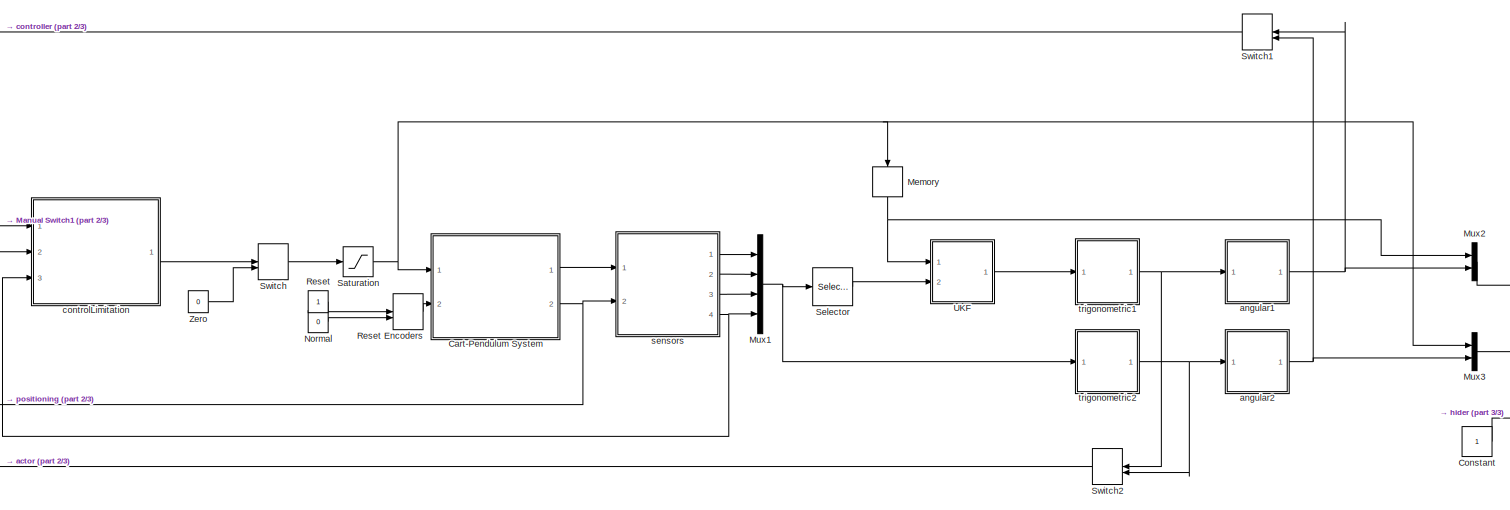
[diagram: root canvas - part 1/3, center side, full height]
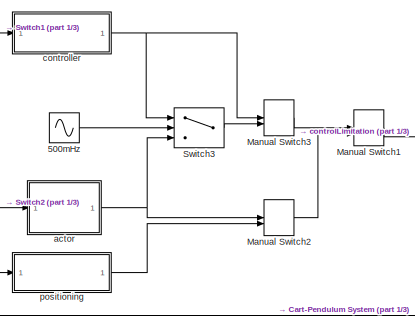
[diagram: root canvas - part 2/3, middle left region]
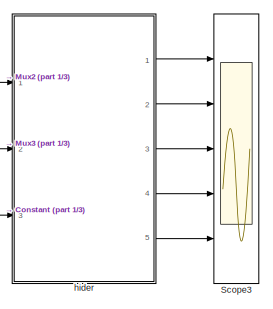
[diagram: root canvas - part 3/3, bottom right region]
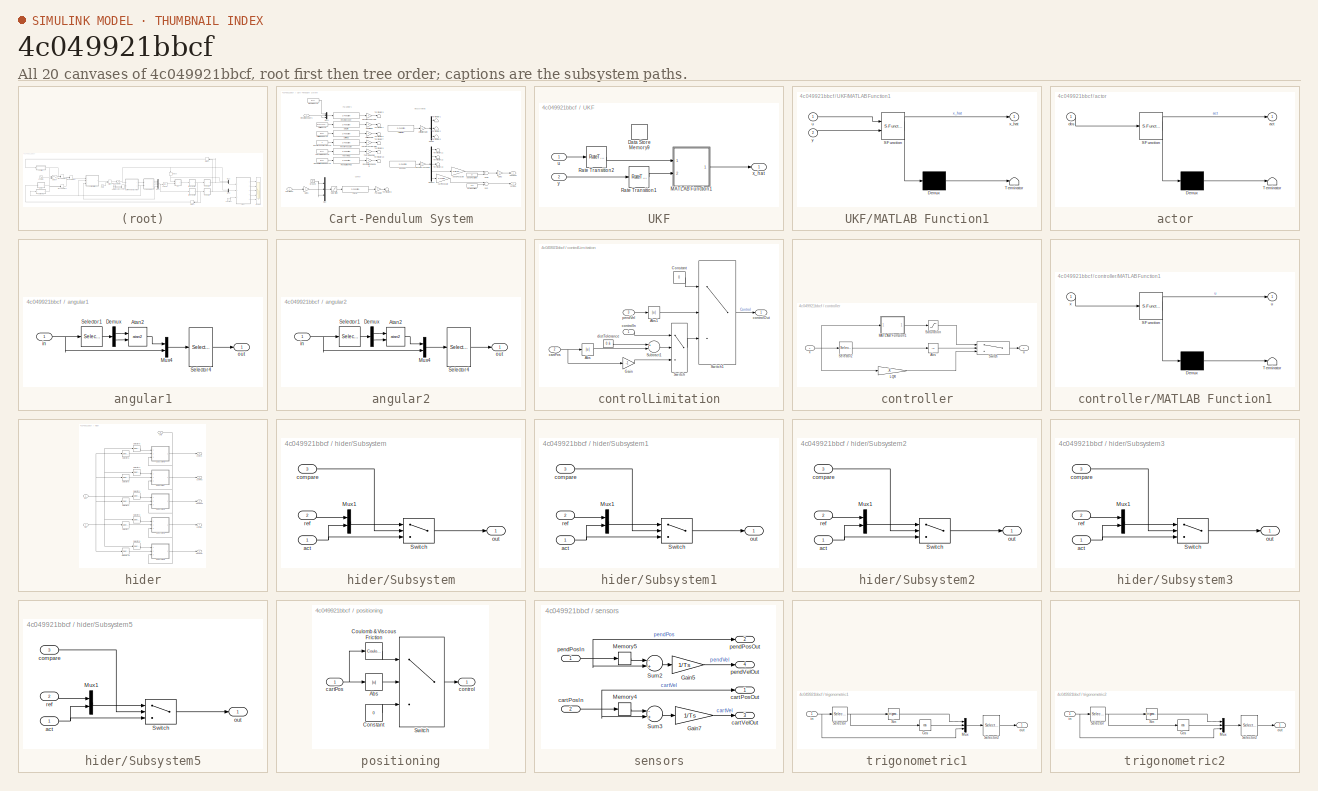
[diagram: thumbnail index - all 20 canvases of the model, root first then tree order]
MODEL slx_4c049921bbcf
KIND model
CONFIG AbsTol = 1e-6
CONFIG FixedStep = 0.01
CONFIG MaxStep = auto
CONFIG MinStep = auto
CONFIG RelTol = 1e-3
CONFIG SampleTimeConstraint = Unconstrained
CONFIG Solver = ode5
CONFIG SolverMode = SingleTasking
CONFIG SolverName = ode5
CONFIG StartTime = 0.0
CONFIG StopTime = 9999
BLOCK [Sin] 500mHz
  Frequency = pi
  Ports = [0, 1]
  SampleTime = Ts
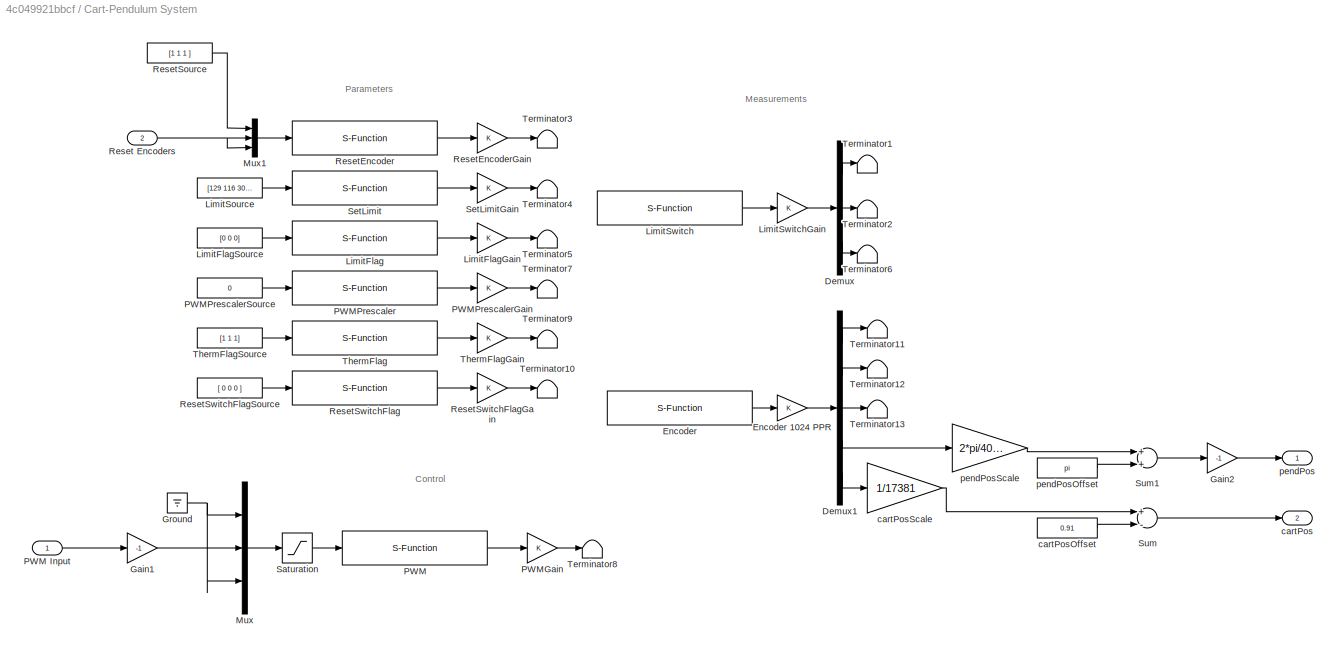
BLOCK [SubSystem] Cart-Pendulum System
  Ports = [2, 2]
  RequestExecContextInheritance = off
BLOCK [Demux] Cart-Pendulum System/Demux
  Outputs = 3
  Ports = [1, 3]
BLOCK [Demux] Cart-Pendulum System/Demux1
  Outputs = 5
  Ports = [1, 5]
BLOCK [S-Function] Cart-Pendulum System/Encoder
  FunctionName = P1_Encoder
  Parameters = BaseAddress, T0
  Ports = [0, 1]
BLOCK [Gain] Cart-Pendulum System/Encoder 1024 PPR
BLOCK [Gain] Cart-Pendulum System/Gain1
  Gain = -1
  OutDataTypeStr = Inherit: Inherit via internal rule
  ParamDataTypeStr = Inherit: Inherit via internal rule
  SaturateOnIntegerOverflow = off
BLOCK [Gain] Cart-Pendulum System/Gain2
  Gain = -1
  OutDataTypeStr = Inherit: Inherit via internal rule
  ParamDataTypeStr = Inherit: Inherit via internal rule
  SaturateOnIntegerOverflow = off
BLOCK [Ground] Cart-Pendulum System/Ground
BLOCK [S-Function] Cart-Pendulum System/LimitFlag
  FunctionName = P1_LimitFlag
  Parameters = BaseAddress, T0
  Ports = [1, 1]
BLOCK [Gain] Cart-Pendulum System/LimitFlagGain
BLOCK [Constant] Cart-Pendulum System/LimitFlagSource
  Value = [0 0 0]
BLOCK [Constant] Cart-Pendulum System/LimitSource
  Value = [129 116 300]
BLOCK [S-Function] Cart-Pendulum System/LimitSwitch
  FunctionName = P1_Switch
  Parameters = BaseAddress, T0
  Ports = [0, 1]
BLOCK [Gain] Cart-Pendulum System/LimitSwitchGain
BLOCK [Mux] Cart-Pendulum System/Mux
  Inputs = 3
  Ports = [3, 1]
BLOCK [Mux] Cart-Pendulum System/Mux1
  DisplayOption = bar
  Inputs = [3 1 1]
  Ports = [3, 1]
BLOCK [S-Function] Cart-Pendulum System/PWM
  FunctionName = P1_PWM
  Parameters = BaseAddress, T0
  Ports = [1, 1]
BLOCK [Inport] Cart-Pendulum System/PWM Input
  IconDisplay = Port number
BLOCK [Gain] Cart-Pendulum System/PWMGain
BLOCK [S-Function] Cart-Pendulum System/PWMPrescaler
  FunctionName = P1_PWMPrescaler
  Parameters = BaseAddress, T0
  Ports = [1, 1]
BLOCK [Gain] Cart-Pendulum System/PWMPrescalerGain
BLOCK [Constant] Cart-Pendulum System/PWMPrescalerSource
  Value = 0
BLOCK [Inport] Cart-Pendulum System/Reset Encoders
  IconDisplay = Port number
  Port = 2
BLOCK [S-Function] Cart-Pendulum System/ResetEncoder
  FunctionName = P1_ResetEncoder
  Parameters = BaseAddress, T0
  Ports = [1, 1]
BLOCK [Gain] Cart-Pendulum System/ResetEncoderGain
BLOCK [Constant] Cart-Pendulum System/ResetSource
  Value = [1 1 1 ]
BLOCK [S-Function] Cart-Pendulum System/ResetSwitchFlag 
  FunctionName = P1_ResetSwitchFlag
  Parameters = BaseAddress, T0
  Ports = [1, 1]
BLOCK [Gain] Cart-Pendulum System/ResetSwitchFlagGain
BLOCK [Constant] Cart-Pendulum System/ResetSwitchFlagSource
  Value = [ 0 0 0 ]
BLOCK [Saturate] Cart-Pendulum System/Saturation
  InputPortMap = u0
  Ports = [1, 1]
BLOCK [S-Function] Cart-Pendulum System/SetLimit
  FunctionName = P1_SetLimit
  Parameters = BaseAddress, T0
  Ports = [1, 1]
BLOCK [Gain] Cart-Pendulum System/SetLimitGain
BLOCK [Sum] Cart-Pendulum System/Sum
  Inputs = +-
  Ports = [2, 1]
BLOCK [Sum] Cart-Pendulum System/Sum1
  Ports = [2, 1]
BLOCK [Terminator] Cart-Pendulum System/Terminator1
BLOCK [Terminator] Cart-Pendulum System/Terminator10
BLOCK [Terminator] Cart-Pendulum System/Terminator11
BLOCK [Terminator] Cart-Pendulum System/Terminator12
BLOCK [Terminator] Cart-Pendulum System/Terminator13
BLOCK [Terminator] Cart-Pendulum System/Terminator2
BLOCK [Terminator] Cart-Pendulum System/Terminator3
BLOCK [Terminator] Cart-Pendulum System/Terminator4
BLOCK [Terminator] Cart-Pendulum System/Terminator5
BLOCK [Terminator] Cart-Pendulum System/Terminator6
BLOCK [Terminator] Cart-Pendulum System/Terminator7
BLOCK [Terminator] Cart-Pendulum System/Terminator8
BLOCK [Terminator] Cart-Pendulum System/Terminator9
BLOCK [S-Function] Cart-Pendulum System/ThermFlag 
  FunctionName = P1_ThermFlag
  Parameters = BaseAddress, T0
  Ports = [1, 1]
BLOCK [Gain] Cart-Pendulum System/ThermFlagGain
BLOCK [Constant] Cart-Pendulum System/ThermFlagSource
  Value = [1 1 1]
BLOCK [Outport] Cart-Pendulum System/cartPos
  IconDisplay = Port number
  Port = 2
BLOCK [Constant] Cart-Pendulum System/cartPosOffset
  Value = 0.91
BLOCK [Gain] Cart-Pendulum System/cartPosScale
  Gain = 1/17381
  SaturateOnIntegerOverflow = off
BLOCK [Outport] Cart-Pendulum System/pendPos
  IconDisplay = Port number
BLOCK [Constant] Cart-Pendulum System/pendPosOffset
  Value = pi
BLOCK [Gain] Cart-Pendulum System/pendPosScale
  Gain = 2*pi/4096
  SaturateOnIntegerOverflow = off
BLOCK [Constant] Constant
BLOCK [ManualSwitch] Manual Switch1
  CurrentSetting = 0
BLOCK [ManualSwitch] Manual Switch2
  CurrentSetting = 0
BLOCK [ManualSwitch] Manual Switch3
BLOCK [Memory] Memory
BLOCK [Mux] Mux1
  DisplayOption = bar
  Ports = [4, 1]
BLOCK [Mux] Mux2
  DisplayOption = bar
  Inputs = 2
  Ports = [2, 1]
BLOCK [Mux] Mux3
  DisplayOption = bar
  Inputs = 2
  Ports = [2, 1]
BLOCK [Constant] Normal
  Value = 0
BLOCK [Constant] Reset
BLOCK [ManualSwitch] Reset Encoders
  CurrentSetting = 0
BLOCK [Saturate] Saturation
  InputPortMap = u0
  Ports = [1, 1]
BLOCK [Scope] Scope3
  DataFormat = StructureWithTime
  Floating = off
  LimitDataPoints = off
  NumInputPorts = 5
  Ports = [5]
  SampleInput = on
  SampleTime = Ts
  SaveToWorkspace = on
  TimeRange = 15
  YMax = 0.6~1~3.141592653589793~5~12
  YMin = -0.6~-1~-3.141592653589793~-5~-12
BLOCK [Selector] Selector
  Indices = [1 2]
  InputPortWidth = 4
  Ports = [1, 1]
BLOCK [ManualSwitch] Switch
  CurrentSetting = 0
BLOCK [ManualSwitch] Switch1
BLOCK [ManualSwitch] Switch2
BLOCK [Switch] Switch3
  Criteria = u2 > Threshold
  InputSameDT = off
  SaturateOnIntegerOverflow = off
BLOCK [SubSystem] UKF
  Ports = [2, 1]
  RequestExecContextInheritance = off
BLOCK [DataStoreMemory] UKF/Data Store Memory9
  DataStoreName = control
  OutDataTypeStr = double
  ReadBeforeWriteMsg = warning
  SignalType = real
  WriteAfterReadMsg = warning
  WriteAfterWriteMsg = warning
BLOCK [SubSystem] UKF/MATLAB Function1
  ErrorFcn = Stateflow.Translate.translate
  PermitHierarchicalResolution = ExplicitOnly
  Ports = [2, 1]
  RequestExecContextInheritance = off
  SFBlockType = MATLAB Function
  TreatAsAtomicUnit = on
BLOCK [Demux] UKF/MATLAB Function1/ Demux 
  DisplayOption = bar
  Outputs = 1
  Ports = [1, 1]
BLOCK [S-Function] UKF/MATLAB Function1/ SFunction 
  EnableBusSupport = on
  FunctionName = sf_sfun
  PortCounts = [2 2]
  Ports = [2, 2]
  Tag = Stateflow S-Function CartPendReal 9
BLOCK [Terminator] UKF/MATLAB Function1/ Terminator 
BLOCK [Inport] UKF/MATLAB Function1/u
  IconDisplay = Port number
BLOCK [Outport] UKF/MATLAB Function1/x_hat
  IconDisplay = Port number
BLOCK [Inport] UKF/MATLAB Function1/y
  IconDisplay = Port number
  Port = 2
BLOCK [RateTransition] UKF/Rate Transition1
  OutPortSampleTime = Ts
  X0 = x0(1:2)
BLOCK [RateTransition] UKF/Rate Transition2
  OutPortSampleTime = Ts
BLOCK [Inport] UKF/u
  IconDisplay = Port number
BLOCK [Outport] UKF/x_hat
  IconDisplay = Port number
BLOCK [Inport] UKF/y
  IconDisplay = Port number
  Port = 2
BLOCK [Constant] Zero
  Value = 0
BLOCK [SubSystem] actor
  ErrorFcn = Stateflow.Translate.translate
  PermitHierarchicalResolution = ExplicitOnly
  Ports = [1, 1]
  RequestExecContextInheritance = off
  SFBlockType = MATLAB Function
  SystemSampleTime = Ts
  TreatAsAtomicUnit = on
BLOCK [Demux] actor/ Demux 
  DisplayOption = bar
  Outputs = 1
  Ports = [1, 1]
BLOCK [S-Function] actor/ SFunction 
  EnableBusSupport = on
  FunctionName = sf_sfun
  Parameters = B1,B2,W1,W2
  PortCounts = [1 2]
  Ports = [1, 2]
  Tag = Stateflow S-Function CartPendReal 6
BLOCK [Terminator] actor/ Terminator 
BLOCK [Outport] actor/act
  IconDisplay = Port number
BLOCK [Inport] actor/obs
  IconDisplay = Port number
BLOCK [SubSystem] angular1
  Ports = [1, 1]
  RequestExecContextInheritance = off
BLOCK [Trigonometry] angular1/Atan2
  Operator = atan2
  Ports = [2, 1]
BLOCK [Demux] angular1/Demux
  DisplayOption = bar
  Outputs = 2
  Ports = [1, 2]
BLOCK [Mux] angular1/Mux4
  DisplayOption = bar
  Inputs = 2
  Ports = [2, 1]
BLOCK [Selector] angular1/Selector1
  Indices = [2 3]
  InputPortWidth = 5
  Ports = [1, 1]
BLOCK [Selector] angular1/Selector4
  Indices = [2 1 5 6]
  InputPortWidth = 6
  Ports = [1, 1]
BLOCK [Inport] angular1/in
  IconDisplay = Port number
BLOCK [Outport] angular1/out
  IconDisplay = Port number
BLOCK [SubSystem] angular2
  Ports = [1, 1]
  RequestExecContextInheritance = off
BLOCK [Trigonometry] angular2/Atan2
  Operator = atan2
  Ports = [2, 1]
BLOCK [Demux] angular2/Demux
  DisplayOption = bar
  Outputs = 2
  Ports = [1, 2]
BLOCK [Mux] angular2/Mux4
  DisplayOption = bar
  Inputs = 2
  Ports = [2, 1]
BLOCK [Selector] angular2/Selector1
  Indices = [2 3]
  InputPortWidth = 5
  Ports = [1, 1]
BLOCK [Selector] angular2/Selector4
  Indices = [2 1 5 6]
  InputPortWidth = 6
  Ports = [1, 1]
BLOCK [Inport] angular2/in
  IconDisplay = Port number
BLOCK [Outport] angular2/out
  IconDisplay = Port number
BLOCK [SubSystem] controlLimitation
  Ports = [3, 1]
  RequestExecContextInheritance = off
BLOCK [Abs] controlLimitation/Abs
  SaturateOnIntegerOverflow = off
BLOCK [Abs] controlLimitation/Abs1
  SaturateOnIntegerOverflow = off
BLOCK [Constant] controlLimitation/Constant
  Value = 0
BLOCK [Gain] controlLimitation/Gain
  Gain = -1
  OutDataTypeStr = Inherit: Inherit via internal rule
  ParamDataTypeStr = Inherit: Inherit via internal rule
  SaturateOnIntegerOverflow = off
BLOCK [Sum] controlLimitation/Subtract1
  InputSameDT = off
  Inputs = +-
  OutDataTypeStr = Inherit: Inherit via internal rule
  Ports = [2, 1]
  SaturateOnIntegerOverflow = off
BLOCK [Switch] controlLimitation/Switch
  Criteria = u2 > Threshold
  InputSameDT = off
  SaturateOnIntegerOverflow = off
BLOCK [Switch] controlLimitation/Switch1
  Criteria = u2 > Threshold
  InputSameDT = off
  SaturateOnIntegerOverflow = off
  Threshold = 1e5
BLOCK [Inport] controlLimitation/cartPos
  IconDisplay = Port number
  Port = 2
BLOCK [Inport] controlLimitation/controlIn
  IconDisplay = Port number
BLOCK [Outport] controlLimitation/controlOut
  IconDisplay = Port number
BLOCK [Constant] controlLimitation/distTolerance
  Value = 0.6
BLOCK [Inport] controlLimitation/pendVel
  IconDisplay = Port number
  Port = 3
BLOCK [SubSystem] controller
  Ports = [1, 1]
  RequestExecContextInheritance = off
BLOCK [Abs] controller/Abs
  SaturateOnIntegerOverflow = off
BLOCK [Gain] controller/LQR
  Gain = -K
  Multiplication = Matrix(K*u) (u vector)
  OutDataTypeStr = Inherit: Inherit via internal rule
  ParamDataTypeStr = Inherit: Inherit via internal rule
  SaturateOnIntegerOverflow = off
BLOCK [SubSystem] controller/MATLAB Function1
  ErrorFcn = Stateflow.Translate.translate
  PermitHierarchicalResolution = ExplicitOnly
  Ports = [1, 1]
  RequestExecContextInheritance = off
  SFBlockType = MATLAB Function
  SystemSampleTime = Ts
  TreatAsAtomicUnit = on
BLOCK [Demux] controller/MATLAB Function1/ Demux 
  DisplayOption = bar
  Outputs = 1
  Ports = [1, 1]
BLOCK [S-Function] controller/MATLAB Function1/ SFunction 
  EnableBusSupport = on
  FunctionName = sf_sfun
  Parameters = Jp,g,lpo,lpwo,mps,mpw
  PortCounts = [1 2]
  Ports = [1, 2]
  Tag = Stateflow S-Function CartPendReal 5
BLOCK [Terminator] controller/MATLAB Function1/ Terminator 
BLOCK [Outport] controller/MATLAB Function1/u
  IconDisplay = Port number
BLOCK [Inport] controller/MATLAB Function1/x
  IconDisplay = Port number
BLOCK [Saturate] controller/Saturation
  InputPortMap = u0
  LowerLimit = -0.4
  Ports = [1, 1]
  UpperLimit = 0.4
BLOCK [Selector] controller/Selector2
  Indices = [2]
  InputPortWidth = 4
  Ports = [1, 1]
BLOCK [Switch] controller/Switch
  Criteria = u2 > Threshold
  InputSameDT = off
  SaturateOnIntegerOverflow = off
  Threshold = 0.5
BLOCK [Outport] controller/u
  IconDisplay = Port number
BLOCK [Inport] controller/x
  IconDisplay = Port number
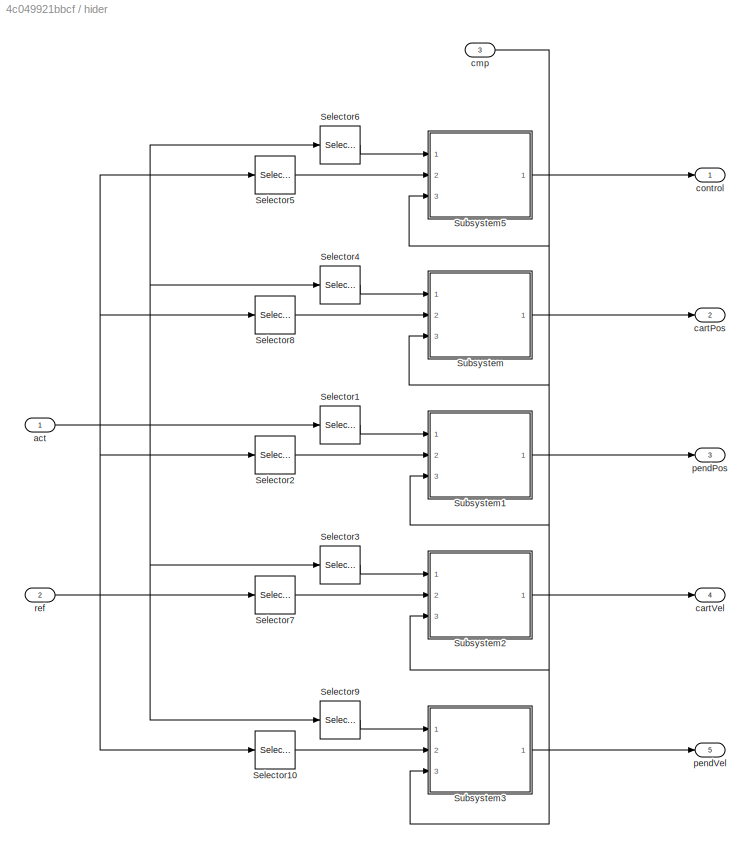
BLOCK [SubSystem] hider
  Ports = [3, 5]
  RequestExecContextInheritance = off
BLOCK [Selector] hider/Selector1
  Indices = [3]
  InputPortWidth = 5
  Ports = [1, 1]
BLOCK [Selector] hider/Selector10
  Indices = [5]
  InputPortWidth = 5
  Ports = [1, 1]
BLOCK [Selector] hider/Selector2
  Indices = [3]
  InputPortWidth = 5
  Ports = [1, 1]
BLOCK [Selector] hider/Selector3
  Indices = [4]
  InputPortWidth = 5
  Ports = [1, 1]
BLOCK [Selector] hider/Selector4
  Indices = [2]
  InputPortWidth = 5
  Ports = [1, 1]
BLOCK [Selector] hider/Selector5
  Indices = [1]
  InputPortWidth = 5
  Ports = [1, 1]
BLOCK [Selector] hider/Selector6
  Indices = [1]
  InputPortWidth = 5
  Ports = [1, 1]
BLOCK [Selector] hider/Selector7
  Indices = [4]
  InputPortWidth = 5
  Ports = [1, 1]
BLOCK [Selector] hider/Selector8
  Indices = [2]
  InputPortWidth = 5
  Ports = [1, 1]
BLOCK [Selector] hider/Selector9
  Indices = [5]
  InputPortWidth = 5
  Ports = [1, 1]
BLOCK [SubSystem] hider/Subsystem
  Ports = [3, 1]
  RequestExecContextInheritance = off
BLOCK [Mux] hider/Subsystem/Mux1
  DisplayOption = bar
  Inputs = 2
  Ports = [2, 1]
BLOCK [Switch] hider/Subsystem/Switch
  Criteria = u2 > Threshold
  InputSameDT = off
  SaturateOnIntegerOverflow = off
BLOCK [Inport] hider/Subsystem/act
  IconDisplay = Port number
BLOCK [Inport] hider/Subsystem/compare
  IconDisplay = Port number
  Port = 3
BLOCK [Outport] hider/Subsystem/out
  IconDisplay = Port number
BLOCK [Inport] hider/Subsystem/ref
  IconDisplay = Port number
  Port = 2
BLOCK [SubSystem] hider/Subsystem1
  Ports = [3, 1]
  RequestExecContextInheritance = off
BLOCK [Mux] hider/Subsystem1/Mux1
  DisplayOption = bar
  Inputs = 2
  Ports = [2, 1]
BLOCK [Switch] hider/Subsystem1/Switch
  Criteria = u2 > Threshold
  InputSameDT = off
  SaturateOnIntegerOverflow = off
BLOCK [Inport] hider/Subsystem1/act
  IconDisplay = Port number
BLOCK [Inport] hider/Subsystem1/compare
  IconDisplay = Port number
  Port = 3
BLOCK [Outport] hider/Subsystem1/out
  IconDisplay = Port number
BLOCK [Inport] hider/Subsystem1/ref
  IconDisplay = Port number
  Port = 2
BLOCK [SubSystem] hider/Subsystem2
  Ports = [3, 1]
  RequestExecContextInheritance = off
BLOCK [Mux] hider/Subsystem2/Mux1
  DisplayOption = bar
  Inputs = 2
  Ports = [2, 1]
BLOCK [Switch] hider/Subsystem2/Switch
  Criteria = u2 > Threshold
  InputSameDT = off
  SaturateOnIntegerOverflow = off
BLOCK [Inport] hider/Subsystem2/act
  IconDisplay = Port number
BLOCK [Inport] hider/Subsystem2/compare
  IconDisplay = Port number
  Port = 3
BLOCK [Outport] hider/Subsystem2/out
  IconDisplay = Port number
BLOCK [Inport] hider/Subsystem2/ref
  IconDisplay = Port number
  Port = 2
BLOCK [SubSystem] hider/Subsystem3
  Ports = [3, 1]
  RequestExecContextInheritance = off
BLOCK [Mux] hider/Subsystem3/Mux1
  DisplayOption = bar
  Inputs = 2
  Ports = [2, 1]
BLOCK [Switch] hider/Subsystem3/Switch
  Criteria = u2 > Threshold
  InputSameDT = off
  SaturateOnIntegerOverflow = off
BLOCK [Inport] hider/Subsystem3/act
  IconDisplay = Port number
BLOCK [Inport] hider/Subsystem3/compare
  IconDisplay = Port number
  Port = 3
BLOCK [Outport] hider/Subsystem3/out
  IconDisplay = Port number
BLOCK [Inport] hider/Subsystem3/ref
  IconDisplay = Port number
  Port = 2
BLOCK [SubSystem] hider/Subsystem5
  Ports = [3, 1]
  RequestExecContextInheritance = off
BLOCK [Mux] hider/Subsystem5/Mux1
  DisplayOption = bar
  Inputs = 2
  Ports = [2, 1]
BLOCK [Switch] hider/Subsystem5/Switch
  Criteria = u2 > Threshold
  InputSameDT = off
  SaturateOnIntegerOverflow = off
BLOCK [Inport] hider/Subsystem5/act
  IconDisplay = Port number
BLOCK [Inport] hider/Subsystem5/compare
  IconDisplay = Port number
  Port = 3
BLOCK [Outport] hider/Subsystem5/out
  IconDisplay = Port number
BLOCK [Inport] hider/Subsystem5/ref
  IconDisplay = Port number
  Port = 2
BLOCK [Inport] hider/act
  IconDisplay = Port number
BLOCK [Outport] hider/cartPos
  IconDisplay = Port number
  Port = 2
BLOCK [Outport] hider/cartVel
  IconDisplay = Port number
  Port = 4
BLOCK [Inport] hider/cmp
  IconDisplay = Port number
  Port = 3
BLOCK [Outport] hider/control
  IconDisplay = Port number
BLOCK [Outport] hider/pendPos
  IconDisplay = Port number
  Port = 3
BLOCK [Outport] hider/pendVel
  IconDisplay = Port number
  Port = 5
BLOCK [Inport] hider/ref
  IconDisplay = Port number
  Port = 2
BLOCK [SubSystem] positioning
  Ports = [1, 1]
  RequestExecContextInheritance = off
BLOCK [Abs] positioning/Abs
  SaturateOnIntegerOverflow = off
BLOCK [Constant] positioning/Constant
  Value = 0
BLOCK [Reference] positioning/Coulomb & Viscous Friction  REF=simulink/Discontinuities/Coulomb &
Viscous Friction
  Ports = [1, 1]
  SourceBlock = simulink/Discontinuities/Coulomb &\nViscous Friction
  SourceType = Coulombic and Viscous Friction
  gain = -1
  offset = -0.1
BLOCK [Switch] positioning/Switch
  Criteria = u2 > Threshold
  InputSameDT = off
  SaturateOnIntegerOverflow = off
  Threshold = 3e-3
BLOCK [Inport] positioning/cartPos
  IconDisplay = Port number
BLOCK [Outport] positioning/control
  IconDisplay = Port number
BLOCK [SubSystem] sensors
  Ports = [2, 4]
  RequestExecContextInheritance = off
BLOCK [Gain] sensors/Gain5
  Gain = 1/Ts
BLOCK [Gain] sensors/Gain7
  Gain = 1/Ts
BLOCK [Memory] sensors/Memory4
  X0 = x0(1)
BLOCK [Memory] sensors/Memory5
  X0 = x0(2)
BLOCK [Sum] sensors/Sum2
  Inputs = -+
  Ports = [2, 1]
BLOCK [Sum] sensors/Sum3
  Inputs = -+
  Ports = [2, 1]
BLOCK [Inport] sensors/cartPosIn
  IconDisplay = Port number
  Port = 2
BLOCK [Outport] sensors/cartPosOut
  IconDisplay = Port number
  InitialOutput = 0
BLOCK [Outport] sensors/cartVelOut
  IconDisplay = Port number
  InitialOutput = 0
  Port = 3
BLOCK [Inport] sensors/pendPosIn
  IconDisplay = Port number
BLOCK [Outport] sensors/pendPosOut
  IconDisplay = Port number
  InitialOutput = 0
  Port = 2
BLOCK [Outport] sensors/pendVelOut
  IconDisplay = Port number
  InitialOutput = 0
  Port = 4
BLOCK [SubSystem] trigonometric1
  Ports = [1, 1]
  RequestExecContextInheritance = off
BLOCK [Trigonometry] trigonometric1/Cos
  Operator = cos
  Ports = [1, 1]
BLOCK [Mux] trigonometric1/Mux
  DisplayOption = bar
  Inputs = 3
  Ports = [3, 1]
BLOCK [Selector] trigonometric1/Selector
  Indices = 2
  InputPortWidth = 4
  Ports = [1, 1]
BLOCK [Selector] trigonometric1/Selector2
  Indices = [3 1 2 5 6]
  InputPortWidth = 6
  Ports = [1, 1]
BLOCK [Trigonometry] trigonometric1/Sin
  Ports = [1, 1]
BLOCK [Inport] trigonometric1/in
  IconDisplay = Port number
BLOCK [Outport] trigonometric1/out
  IconDisplay = Port number
BLOCK [SubSystem] trigonometric2
  Ports = [1, 1]
  RequestExecContextInheritance = off
BLOCK [Trigonometry] trigonometric2/Cos
  Operator = cos
  Ports = [1, 1]
BLOCK [Mux] trigonometric2/Mux
  DisplayOption = bar
  Inputs = 3
  Ports = [3, 1]
BLOCK [Selector] trigonometric2/Selector
  Indices = 2
  InputPortWidth = 4
  Ports = [1, 1]
BLOCK [Selector] trigonometric2/Selector2
  Indices = [3 1 2 5 6]
  InputPortWidth = 6
  Ports = [1, 1]
BLOCK [Trigonometry] trigonometric2/Sin
  Ports = [1, 1]
BLOCK [Inport] trigonometric2/in
  IconDisplay = Port number
BLOCK [Outport] trigonometric2/out
  IconDisplay = Port number
ANNOTATION Cart-Pendulum System: Control
ANNOTATION Cart-Pendulum System: Measurements
ANNOTATION Cart-Pendulum System: Parameters
LINE 500mHz:1 -> Switch3:2
LINE Cart-Pendulum System/Demux1:1 -> Cart-Pendulum System/Terminator11:1
LINE Cart-Pendulum System/Demux1:2 -> Cart-Pendulum System/Terminator12:1
LINE Cart-Pendulum System/Demux1:3 -> Cart-Pendulum System/Terminator13:1
LINE Cart-Pendulum System/Demux1:4 -> Cart-Pendulum System/pendPosScale:1
LINE Cart-Pendulum System/Demux1:5 -> Cart-Pendulum System/cartPosScale:1
LINE Cart-Pendulum System/Demux:1 -> Cart-Pendulum System/Terminator1:1
LINE Cart-Pendulum System/Demux:2 -> Cart-Pendulum System/Terminator2:1
LINE Cart-Pendulum System/Demux:3 -> Cart-Pendulum System/Terminator6:1
LINE Cart-Pendulum System/Encoder 1024 PPR:1 -> Cart-Pendulum System/Demux1:1
LINE Cart-Pendulum System/Encoder:1 -> Cart-Pendulum System/Encoder 1024 PPR:1
LINE Cart-Pendulum System/Gain1:1 -> Cart-Pendulum System/Mux:2
LINE Cart-Pendulum System/Gain2:1 -> Cart-Pendulum System/pendPos:1
NET Cart-Pendulum System/Ground:1 -> Cart-Pendulum System/Mux:1, Cart-Pendulum System/Mux:3
LINE Cart-Pendulum System/LimitFlag:1 -> Cart-Pendulum System/LimitFlagGain:1
LINE Cart-Pendulum System/LimitFlagGain:1 -> Cart-Pendulum System/Terminator5:1
LINE Cart-Pendulum System/LimitFlagSource:1 -> Cart-Pendulum System/LimitFlag:1
LINE Cart-Pendulum System/LimitSource:1 -> Cart-Pendulum System/SetLimit:1
LINE Cart-Pendulum System/LimitSwitch:1 -> Cart-Pendulum System/LimitSwitchGain:1
LINE Cart-Pendulum System/LimitSwitchGain:1 -> Cart-Pendulum System/Demux:1
LINE Cart-Pendulum System/Mux1:1 -> Cart-Pendulum System/ResetEncoder:1
LINE Cart-Pendulum System/Mux:1 -> Cart-Pendulum System/Saturation:1
LINE Cart-Pendulum System/PWM Input:1 -> Cart-Pendulum System/Gain1:1
LINE Cart-Pendulum System/PWM:1 -> Cart-Pendulum System/PWMGain:1
LINE Cart-Pendulum System/PWMGain:1 -> Cart-Pendulum System/Terminator8:1
LINE Cart-Pendulum System/PWMPrescaler:1 -> Cart-Pendulum System/PWMPrescalerGain:1
LINE Cart-Pendulum System/PWMPrescalerGain:1 -> Cart-Pendulum System/Terminator7:1
LINE Cart-Pendulum System/PWMPrescalerSource:1 -> Cart-Pendulum System/PWMPrescaler:1
NET Cart-Pendulum System/Reset Encoders:1 -> Cart-Pendulum System/Mux1:2, Cart-Pendulum System/Mux1:3
LINE Cart-Pendulum System/ResetEncoder:1 -> Cart-Pendulum System/ResetEncoderGain:1
LINE Cart-Pendulum System/ResetEncoderGain:1 -> Cart-Pendulum System/Terminator3:1
LINE Cart-Pendulum System/ResetSource:1 -> Cart-Pendulum System/Mux1:1
LINE Cart-Pendulum System/ResetSwitchFlag :1 -> Cart-Pendulum System/ResetSwitchFlagGain:1
LINE Cart-Pendulum System/ResetSwitchFlagGain:1 -> Cart-Pendulum System/Terminator10:1
LINE Cart-Pendulum System/ResetSwitchFlagSource:1 -> Cart-Pendulum System/ResetSwitchFlag :1
LINE Cart-Pendulum System/Saturation:1 -> Cart-Pendulum System/PWM:1
LINE Cart-Pendulum System/SetLimit:1 -> Cart-Pendulum System/SetLimitGain:1
LINE Cart-Pendulum System/SetLimitGain:1 -> Cart-Pendulum System/Terminator4:1
LINE Cart-Pendulum System/Sum1:1 -> Cart-Pendulum System/Gain2:1
LINE Cart-Pendulum System/Sum:1 -> Cart-Pendulum System/cartPos:1
LINE Cart-Pendulum System/ThermFlag :1 -> Cart-Pendulum System/ThermFlagGain:1
LINE Cart-Pendulum System/ThermFlagGain:1 -> Cart-Pendulum System/Terminator9:1
LINE Cart-Pendulum System/ThermFlagSource:1 -> Cart-Pendulum System/ThermFlag :1
LINE Cart-Pendulum System/cartPosOffset:1 -> Cart-Pendulum System/Sum:2
LINE Cart-Pendulum System/cartPosScale:1 -> Cart-Pendulum System/Sum:1
LINE Cart-Pendulum System/pendPosOffset:1 -> Cart-Pendulum System/Sum1:2
LINE Cart-Pendulum System/pendPosScale:1 -> Cart-Pendulum System/Sum1:1
LINE Cart-Pendulum System:1 -> sensors:1
NET Cart-Pendulum System:2 -> controlLimitation:2, positioning:1, sensors:2
LINE Constant:1 -> hider:3
LINE Manual Switch1:1 -> controlLimitation:1
LINE Manual Switch2:1 -> Manual Switch1:2
LINE Manual Switch3:1 -> Manual Switch1:1
NET Memory:1 -> Mux2:1, UKF:1
NET Mux1:1 -> Selector:1, trigonometric2:1
LINE Mux2:1 -> hider:1
LINE Mux3:1 -> hider:2
LINE Normal:1 -> Reset Encoders:2
LINE Reset Encoders:1 -> Cart-Pendulum System:2
LINE Reset:1 -> Reset Encoders:1
NET Saturation:1 -> Cart-Pendulum System:1, Memory:1, Mux3:1
LINE Selector:1 -> UKF:2
LINE Switch1:1 -> controller:1
LINE Switch2:1 -> actor:1
LINE Switch3:1 -> Manual Switch3:2
LINE Switch:1 -> Saturation:1
LINE UKF/MATLAB Function1:1 -> UKF/x_hat:1
LINE UKF/Rate Transition1:1 -> UKF/MATLAB Function1:2
LINE UKF/Rate Transition2:1 -> UKF/MATLAB Function1:1
LINE UKF/u:1 -> UKF/Rate Transition2:1
LINE UKF/y:1 -> UKF/Rate Transition1:1
LINE UKF:1 -> trigonometric1:1
LINE Zero:1 -> Switch:2
NET actor:1 -> Manual Switch2:1, Switch3:3
LINE angular1/Atan2:1 -> angular1/Mux4:1
LINE angular1/Demux:1 -> angular1/Atan2:1
LINE angular1/Demux:2 -> angular1/Atan2:2
LINE angular1/Mux4:1 -> angular1/Selector4:1
LINE angular1/Selector1:1 -> angular1/Demux:1
LINE angular1/Selector4:1 -> angular1/out:1
NET angular1/in:1 -> angular1/Mux4:2, angular1/Selector1:1
NET angular1:1 -> Mux2:2, Switch1:1
LINE angular2/Atan2:1 -> angular2/Mux4:1
LINE angular2/Demux:1 -> angular2/Atan2:1
LINE angular2/Demux:2 -> angular2/Atan2:2
LINE angular2/Mux4:1 -> angular2/Selector4:1
LINE angular2/Selector1:1 -> angular2/Demux:1
LINE angular2/Selector4:1 -> angular2/out:1
NET angular2/in:1 -> angular2/Mux4:2, angular2/Selector1:1
NET angular2:1 -> Mux3:2, Switch1:2
LINE controlLimitation/Abs1:1 -> controlLimitation/Switch1:2
LINE controlLimitation/Abs:1 -> controlLimitation/Subtract1:2
LINE controlLimitation/Constant:1 -> controlLimitation/Switch1:1
LINE controlLimitation/Gain:1 -> controlLimitation/Switch:3
LINE controlLimitation/Subtract1:1 -> controlLimitation/Switch:2
LINE controlLimitation/Switch1:1 -> controlLimitation/controlOut:1
LINE controlLimitation/Switch:1 -> controlLimitation/Switch1:3
NET controlLimitation/cartPos:1 -> controlLimitation/Abs:1, controlLimitation/Gain:1
LINE controlLimitation/controlIn:1 -> controlLimitation/Switch:1
LINE controlLimitation/distTolerance:1 -> controlLimitation/Subtract1:1
LINE controlLimitation/pendVel:1 -> controlLimitation/Abs1:1
LINE controlLimitation:1 -> Switch:1
LINE controller/Abs:1 -> controller/Switch:2
LINE controller/LQR:1 -> controller/Switch:3
LINE controller/MATLAB Function1:1 -> controller/Saturation:1
LINE controller/Saturation:1 -> controller/Switch:1
LINE controller/Selector2:1 -> controller/Abs:1
LINE controller/Switch:1 -> controller/u:1
NET controller/x:1 -> controller/LQR:1, controller/MATLAB Function1:1, controller/Selector2:1
NET controller:1 -> Manual Switch3:1, Switch3:1
LINE hider/Selector10:1 -> hider/Subsystem3:2
LINE hider/Selector1:1 -> hider/Subsystem1:1
LINE hider/Selector2:1 -> hider/Subsystem1:2
LINE hider/Selector3:1 -> hider/Subsystem2:1
LINE hider/Selector4:1 -> hider/Subsystem:1
LINE hider/Selector5:1 -> hider/Subsystem5:2
LINE hider/Selector6:1 -> hider/Subsystem5:1
LINE hider/Selector7:1 -> hider/Subsystem2:2
LINE hider/Selector8:1 -> hider/Subsystem:2
LINE hider/Selector9:1 -> hider/Subsystem3:1
LINE hider/Subsystem/Mux1:1 -> hider/Subsystem/Switch:1
LINE hider/Subsystem/Switch:1 -> hider/Subsystem/out:1
NET hider/Subsystem/act:1 -> hider/Subsystem/Mux1:2, hider/Subsystem/Switch:3
LINE hider/Subsystem/compare:1 -> hider/Subsystem/Switch:2
LINE hider/Subsystem/ref:1 -> hider/Subsystem/Mux1:1
LINE hider/Subsystem1/Mux1:1 -> hider/Subsystem1/Switch:1
LINE hider/Subsystem1/Switch:1 -> hider/Subsystem1/out:1
NET hider/Subsystem1/act:1 -> hider/Subsystem1/Mux1:2, hider/Subsystem1/Switch:3
LINE hider/Subsystem1/compare:1 -> hider/Subsystem1/Switch:2
LINE hider/Subsystem1/ref:1 -> hider/Subsystem1/Mux1:1
LINE hider/Subsystem1:1 -> hider/pendPos:1
LINE hider/Subsystem2/Mux1:1 -> hider/Subsystem2/Switch:1
LINE hider/Subsystem2/Switch:1 -> hider/Subsystem2/out:1
NET hider/Subsystem2/act:1 -> hider/Subsystem2/Mux1:2, hider/Subsystem2/Switch:3
LINE hider/Subsystem2/compare:1 -> hider/Subsystem2/Switch:2
LINE hider/Subsystem2/ref:1 -> hider/Subsystem2/Mux1:1
LINE hider/Subsystem2:1 -> hider/cartVel:1
LINE hider/Subsystem3/Mux1:1 -> hider/Subsystem3/Switch:1
LINE hider/Subsystem3/Switch:1 -> hider/Subsystem3/out:1
NET hider/Subsystem3/act:1 -> hider/Subsystem3/Mux1:2, hider/Subsystem3/Switch:3
LINE hider/Subsystem3/compare:1 -> hider/Subsystem3/Switch:2
LINE hider/Subsystem3/ref:1 -> hider/Subsystem3/Mux1:1
LINE hider/Subsystem3:1 -> hider/pendVel:1
LINE hider/Subsystem5/Mux1:1 -> hider/Subsystem5/Switch:1
LINE hider/Subsystem5/Switch:1 -> hider/Subsystem5/out:1
NET hider/Subsystem5/act:1 -> hider/Subsystem5/Mux1:2, hider/Subsystem5/Switch:3
LINE hider/Subsystem5/compare:1 -> hider/Subsystem5/Switch:2
LINE hider/Subsystem5/ref:1 -> hider/Subsystem5/Mux1:1
LINE hider/Subsystem5:1 -> hider/control:1
LINE hider/Subsystem:1 -> hider/cartPos:1
NET hider/act:1 -> hider/Selector1:1, hider/Selector3:1, hider/Selector4:1, hider/Selector6:1, hider/Selector9:1
NET hider/cmp:1 -> hider/Subsystem1:3, hider/Subsystem2:3, hider/Subsystem3:3, hider/Subsystem5:3, hider/Subsystem:3
NET hider/ref:1 -> hider/Selector10:1, hider/Selector2:1, hider/Selector5:1, hider/Selector7:1, hider/Selector8:1
LINE hider:1 -> Scope3:1
LINE hider:2 -> Scope3:2
LINE hider:3 -> Scope3:3
LINE hider:4 -> Scope3:4
LINE hider:5 -> Scope3:5
LINE positioning/Abs:1 -> positioning/Switch:2
LINE positioning/Constant:1 -> positioning/Switch:3
LINE positioning/Coulomb & Viscous Friction:1 -> positioning/Switch:1
LINE positioning/Switch:1 -> positioning/control:1
NET positioning/cartPos:1 -> positioning/Abs:1, positioning/Coulomb & Viscous Friction:1
LINE positioning:1 -> Manual Switch2:2
LINE sensors/Gain5:1 -> sensors/pendVelOut:1
LINE sensors/Gain7:1 -> sensors/cartVelOut:1
LINE sensors/Memory4:1 -> sensors/Sum3:1
LINE sensors/Memory5:1 -> sensors/Sum2:1
LINE sensors/Sum2:1 -> sensors/Gain5:1
LINE sensors/Sum3:1 -> sensors/Gain7:1
NET sensors/cartPosIn:1 -> sensors/Memory4:1, sensors/Sum3:2, sensors/cartPosOut:1
NET sensors/pendPosIn:1 -> sensors/Memory5:1, sensors/Sum2:2, sensors/pendPosOut:1
LINE sensors:1 -> Mux1:1
LINE sensors:2 -> Mux1:2
LINE sensors:3 -> Mux1:3
NET sensors:4 -> Mux1:4, controlLimitation:3
LINE trigonometric1/Cos:1 -> trigonometric1/Mux:2
LINE trigonometric1/Mux:1 -> trigonometric1/Selector2:1
LINE trigonometric1/Selector2:1 -> trigonometric1/out:1
NET trigonometric1/Selector:1 -> trigonometric1/Cos:1, trigonometric1/Sin:1
LINE trigonometric1/Sin:1 -> trigonometric1/Mux:1
NET trigonometric1/in:1 -> trigonometric1/Mux:3, trigonometric1/Selector:1
NET trigonometric1:1 -> Switch2:1, angular1:1
LINE trigonometric2/Cos:1 -> trigonometric2/Mux:2
LINE trigonometric2/Mux:1 -> trigonometric2/Selector2:1
LINE trigonometric2/Selector2:1 -> trigonometric2/out:1
NET trigonometric2/Selector:1 -> trigonometric2/Cos:1, trigonometric2/Sin:1
LINE trigonometric2/Sin:1 -> trigonometric2/Mux:1
NET trigonometric2/in:1 -> trigonometric2/Mux:3, trigonometric2/Selector:1
NET trigonometric2:1 -> Switch2:2, angular2:1
note: NET lines group one-source signal fan-out (src -> all destinations, sorted); 1:1 wires keep LINE
CHART controller/MATLAB Function1 states=1 transitions=1
  STATE_LABEL 'eML_blk_kernel()'
  STATE_LABEL 'SCRIPT:\nfunction u = swingUp(x, mpw, mps, lpwo, lpo, g, Jp)\ncartPos = x(1);\npendPos = x(2);\npendVel = x(4);\nEp = (mpw*lpwo + mps*lpo)*g*(cos(pendPos) + 1);\nEk = (Jp*pendVel^2)/2;\nEm = Ep + Ek;\nEmtop = 2*g*(mpw*lpwo + mps*lpo);\nif (Em < Emtop)\n    u = sign(pendVel*cos(pendPos))/2 - cartPos;\nelse\n    u = 0;\nend\n'
CHART actor states=1 transitions=1
  STATE_LABEL 'eML_blk_kernel()'
  STATE_LABEL 'SCRIPT:\nfunction act = policy(obs, W1, B1, W2, B2)\n    u = max(0, W1*obs + B1);\n    u = tanh(W2*u + B2);\n    u = max(-0.5, 0.5*u);\n    u = min(u, 0.5);\n    act = double(u);\nend'
CHART UKF/MATLAB Function1 states=1 transitions=1
  STATE_LABEL 'eML_blk_kernel()'
  STATE_LABEL "SCRIPT:\nfunction x_hat = UKF(u, y)\n  global control\n  control = u;\n  persistent P x\n  if isempty(P)\n    P = eye(4);\n  end\n  if isempty(x)\n    x = [0 pi 0 0]';\n  end\n  Ts = 0.01;\n  f = @CartPendStep;\n  h = @CartPendOut;\n  z = y;\n  Q = diag([1/17381 2*pi/4096 1/17381/Ts 2*pi/4096/Ts])^2;\n  R = diag([0 20*pi/4096])^2;\n  [x, P] = ukf(f, x, P, h, z, Q, R);\n  x_hat = x;\nend\n\nfunction x_out = CartPendOut...<+914ch>"
